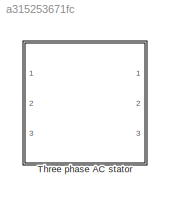
MODEL slx_a315253671fc
KIND model
CONFIG AbsTol = auto
CONFIG FixedStep = auto
CONFIG MaxStep = auto
CONFIG MinStep = auto
CONFIG RelTol = 1e-3
CONFIG SampleTimeConstraint = Unconstrained
CONFIG Solver = VariableStepAuto
CONFIG SolverMode = Auto
CONFIG SolverName = VariableStepAuto
CONFIG StartTime = 0.0
CONFIG StopTime = 10.0
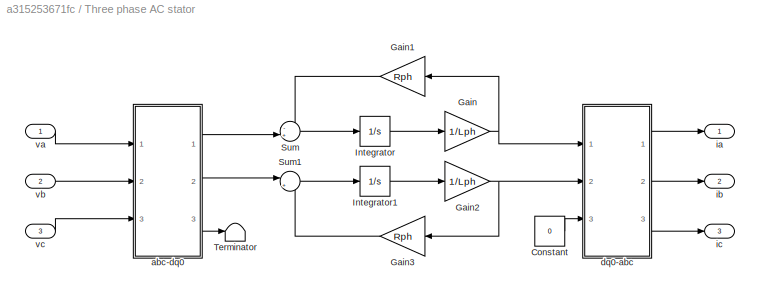
BLOCK [SubSystem] Three phase AC stator
  Ports = [3, 3]
  RequestExecContextInheritance = off
  Variant = off
BLOCK [Constant] Three phase AC stator/Constant
  Value = 0
BLOCK [Gain] Three phase AC stator/Gain
  Gain = 1/Lph
  OutDataTypeStr = Inherit: Inherit via internal rule
  ParamDataTypeStr = Inherit: Inherit via internal rule
  SaturateOnIntegerOverflow = off
BLOCK [Gain] Three phase AC stator/Gain1
  Gain = Rph
  OutDataTypeStr = Inherit: Inherit via internal rule
  ParamDataTypeStr = Inherit: Inherit via internal rule
  SaturateOnIntegerOverflow = off
BLOCK [Gain] Three phase AC stator/Gain2
  Gain = 1/Lph
  OutDataTypeStr = Inherit: Inherit via internal rule
  ParamDataTypeStr = Inherit: Inherit via internal rule
  SaturateOnIntegerOverflow = off
BLOCK [Gain] Three phase AC stator/Gain3
  Gain = Rph
  OutDataTypeStr = Inherit: Inherit via internal rule
  ParamDataTypeStr = Inherit: Inherit via internal rule
  SaturateOnIntegerOverflow = off
BLOCK [Integrator] Three phase AC stator/Integrator
  Ports = [1, 1]
BLOCK [Integrator] Three phase AC stator/Integrator1
  Ports = [1, 1]
BLOCK [Sum] Three phase AC stator/Sum
  IconShape = round
  InputSameDT = off
  Inputs = -+|
  OutDataTypeStr = Inherit: Inherit via internal rule
  Ports = [2, 1]
  SaturateOnIntegerOverflow = off
BLOCK [Sum] Three phase AC stator/Sum1
  IconShape = round
  InputSameDT = off
  Inputs = |+-
  OutDataTypeStr = Inherit: Inherit via internal rule
  Ports = [2, 1]
  SaturateOnIntegerOverflow = off
BLOCK [Terminator] Three phase AC stator/Terminator
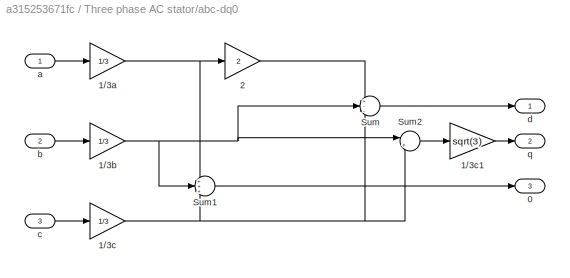
BLOCK [SubSystem] Three phase AC stator/abc-dq0
  Ports = [3, 3]
  RequestExecContextInheritance = off
  Variant = off
BLOCK [Outport] Three phase AC stator/abc-dq0/0
  IconDisplay = Port number
  Port = 3
BLOCK [Gain] Three phase AC stator/abc-dq0/1//3a
  Gain = 1/3
  OutDataTypeStr = Inherit: Inherit via internal rule
  ParamDataTypeStr = Inherit: Inherit via internal rule
  SaturateOnIntegerOverflow = off
BLOCK [Gain] Three phase AC stator/abc-dq0/1//3b
  Gain = 1/3
  OutDataTypeStr = Inherit: Inherit via internal rule
  ParamDataTypeStr = Inherit: Inherit via internal rule
  SaturateOnIntegerOverflow = off
BLOCK [Gain] Three phase AC stator/abc-dq0/1//3c
  Gain = 1/3
  OutDataTypeStr = Inherit: Inherit via internal rule
  ParamDataTypeStr = Inherit: Inherit via internal rule
  SaturateOnIntegerOverflow = off
BLOCK [Gain] Three phase AC stator/abc-dq0/1//3c1
  Gain = sqrt(3)
  OutDataTypeStr = Inherit: Inherit via internal rule
  ParamDataTypeStr = Inherit: Inherit via internal rule
  SaturateOnIntegerOverflow = off
BLOCK [Gain] Three phase AC stator/abc-dq0/2
  Gain = 2
  OutDataTypeStr = Inherit: Inherit via internal rule
  ParamDataTypeStr = Inherit: Inherit via internal rule
  SaturateOnIntegerOverflow = off
BLOCK [Sum] Three phase AC stator/abc-dq0/Sum
  IconShape = round
  InputSameDT = off
  Inputs = +--
  OutDataTypeStr = Inherit: Inherit via internal rule
  Ports = [3, 1]
  SaturateOnIntegerOverflow = off
BLOCK [Sum] Three phase AC stator/abc-dq0/Sum1
  IconShape = round
  InputSameDT = off
  Inputs = +++
  OutDataTypeStr = Inherit: Inherit via internal rule
  Ports = [3, 1]
  SaturateOnIntegerOverflow = off
BLOCK [Sum] Three phase AC stator/abc-dq0/Sum2
  IconShape = round
  InputSameDT = off
  Inputs = |+-
  OutDataTypeStr = Inherit: Inherit via internal rule
  Ports = [2, 1]
  SaturateOnIntegerOverflow = off
BLOCK [Inport] Three phase AC stator/abc-dq0/a
  IconDisplay = Port number
BLOCK [Inport] Three phase AC stator/abc-dq0/b
  IconDisplay = Port number
  Port = 2
BLOCK [Inport] Three phase AC stator/abc-dq0/c
  IconDisplay = Port number
  Port = 3
BLOCK [Outport] Three phase AC stator/abc-dq0/d
  IconDisplay = Port number
BLOCK [Outport] Three phase AC stator/abc-dq0/q
  IconDisplay = Port number
  Port = 2
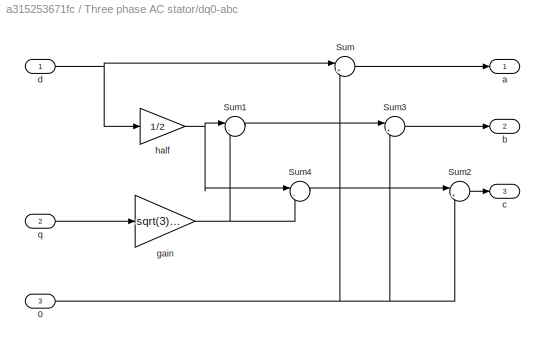
BLOCK [SubSystem] Three phase AC stator/dq0-abc
  Ports = [3, 3]
  RequestExecContextInheritance = off
  Variant = off
BLOCK [Inport] Three phase AC stator/dq0-abc/0
  IconDisplay = Port number
  Port = 3
BLOCK [Sum] Three phase AC stator/dq0-abc/Sum
  IconShape = round
  InputSameDT = off
  Inputs = |++
  OutDataTypeStr = Inherit: Inherit via internal rule
  Ports = [2, 1]
  SaturateOnIntegerOverflow = off
BLOCK [Sum] Three phase AC stator/dq0-abc/Sum1
  IconShape = round
  InputSameDT = off
  Inputs = |-+
  OutDataTypeStr = Inherit: Inherit via internal rule
  Ports = [2, 1]
  SaturateOnIntegerOverflow = off
BLOCK [Sum] Three phase AC stator/dq0-abc/Sum2
  IconShape = round
  InputSameDT = off
  Inputs = |++
  OutDataTypeStr = Inherit: Inherit via internal rule
  Ports = [2, 1]
  SaturateOnIntegerOverflow = off
BLOCK [Sum] Three phase AC stator/dq0-abc/Sum3
  IconShape = round
  InputSameDT = off
  Inputs = |++
  OutDataTypeStr = Inherit: Inherit via internal rule
  Ports = [2, 1]
  SaturateOnIntegerOverflow = off
BLOCK [Sum] Three phase AC stator/dq0-abc/Sum4
  IconShape = round
  InputSameDT = off
  Inputs = |--
  OutDataTypeStr = Inherit: Inherit via internal rule
  Ports = [2, 1]
  SaturateOnIntegerOverflow = off
BLOCK [Outport] Three phase AC stator/dq0-abc/a
  IconDisplay = Port number
BLOCK [Outport] Three phase AC stator/dq0-abc/b
  IconDisplay = Port number
  Port = 2
BLOCK [Outport] Three phase AC stator/dq0-abc/c
  IconDisplay = Port number
  Port = 3
BLOCK [Inport] Three phase AC stator/dq0-abc/d
  IconDisplay = Port number
BLOCK [Gain] Three phase AC stator/dq0-abc/gain
  Gain = sqrt(3)/2
  OutDataTypeStr = Inherit: Inherit via internal rule
  ParamDataTypeStr = Inherit: Inherit via internal rule
  SaturateOnIntegerOverflow = off
BLOCK [Gain] Three phase AC stator/dq0-abc/half
  Gain = 1/2
  OutDataTypeStr = Inherit: Inherit via internal rule
  ParamDataTypeStr = Inherit: Inherit via internal rule
  SaturateOnIntegerOverflow = off
BLOCK [Inport] Three phase AC stator/dq0-abc/q
  IconDisplay = Port number
  Port = 2
BLOCK [Outport] Three phase AC stator/ia
  IconDisplay = Port number
BLOCK [Outport] Three phase AC stator/ib
  IconDisplay = Port number
  Port = 2
BLOCK [Outport] Three phase AC stator/ic
  IconDisplay = Port number
  Port = 3
BLOCK [Inport] Three phase AC stator/va
  IconDisplay = Port number
BLOCK [Inport] Three phase AC stator/vb
  IconDisplay = Port number
  Port = 2
BLOCK [Inport] Three phase AC stator/vc
  IconDisplay = Port number
  Port = 3
LINE Three phase AC stator/Constant:1 -> Three phase AC stator/dq0-abc:3
LINE Three phase AC stator/Gain1:1 -> Three phase AC stator/Sum:1
NET Three phase AC stator/Gain2:1 -> Three phase AC stator/Gain3:1, Three phase AC stator/dq0-abc:2
LINE Three phase AC stator/Gain3:1 -> Three phase AC stator/Sum1:2
NET Three phase AC stator/Gain:1 -> Three phase AC stator/Gain1:1, Three phase AC stator/dq0-abc:1
LINE Three phase AC stator/Integrator1:1 -> Three phase AC stator/Gain2:1
LINE Three phase AC stator/Integrator:1 -> Three phase AC stator/Gain:1
LINE Three phase AC stator/Sum1:1 -> Three phase AC stator/Integrator1:1
LINE Three phase AC stator/Sum:1 -> Three phase AC stator/Integrator:1
NET Three phase AC stator/abc-dq0/1//3a:1 -> Three phase AC stator/abc-dq0/2:1, Three phase AC stator/abc-dq0/Sum1:1
NET Three phase AC stator/abc-dq0/1//3b:1 -> Three phase AC stator/abc-dq0/Sum1:2, Three phase AC stator/abc-dq0/Sum2:1, Three phase AC stator/abc-dq0/Sum:2
LINE Three phase AC stator/abc-dq0/1//3c1:1 -> Three phase AC stator/abc-dq0/q:1
NET Three phase AC stator/abc-dq0/1//3c:1 -> Three phase AC stator/abc-dq0/Sum1:3, Three phase AC stator/abc-dq0/Sum2:2, Three phase AC stator/abc-dq0/Sum:3
LINE Three phase AC stator/abc-dq0/2:1 -> Three phase AC stator/abc-dq0/Sum:1
LINE Three phase AC stator/abc-dq0/Sum1:1 -> Three phase AC stator/abc-dq0/0:1
LINE Three phase AC stator/abc-dq0/Sum2:1 -> Three phase AC stator/abc-dq0/1//3c1:1
LINE Three phase AC stator/abc-dq0/Sum:1 -> Three phase AC stator/abc-dq0/d:1
LINE Three phase AC stator/abc-dq0/a:1 -> Three phase AC stator/abc-dq0/1//3a:1
LINE Three phase AC stator/abc-dq0/b:1 -> Three phase AC stator/abc-dq0/1//3b:1
LINE Three phase AC stator/abc-dq0/c:1 -> Three phase AC stator/abc-dq0/1//3c:1
LINE Three phase AC stator/abc-dq0:1 -> Three phase AC stator/Sum:2
LINE Three phase AC stator/abc-dq0:2 -> Three phase AC stator/Sum1:1
LINE Three phase AC stator/abc-dq0:3 -> Three phase AC stator/Terminator:1
NET Three phase AC stator/dq0-abc/0:1 -> Three phase AC stator/dq0-abc/Sum2:2, Three phase AC stator/dq0-abc/Sum3:2, Three phase AC stator/dq0-abc/Sum:2
LINE Three phase AC stator/dq0-abc/Sum1:1 -> Three phase AC stator/dq0-abc/Sum3:1
LINE Three phase AC stator/dq0-abc/Sum2:1 -> Three phase AC stator/dq0-abc/c:1
LINE Three phase AC stator/dq0-abc/Sum3:1 -> Three phase AC stator/dq0-abc/b:1
LINE Three phase AC stator/dq0-abc/Sum4:1 -> Three phase AC stator/dq0-abc/Sum2:1
LINE Three phase AC stator/dq0-abc/Sum:1 -> Three phase AC stator/dq0-abc/a:1
NET Three phase AC stator/dq0-abc/d:1 -> Three phase AC stator/dq0-abc/Sum:1, Three phase AC stator/dq0-abc/half:1
NET Three phase AC stator/dq0-abc/gain:1 -> Three phase AC stator/dq0-abc/Sum1:2, Three phase AC stator/dq0-abc/Sum4:2
NET Three phase AC stator/dq0-abc/half:1 -> Three phase AC stator/dq0-abc/Sum1:1, Three phase AC stator/dq0-abc/Sum4:1
LINE Three phase AC stator/dq0-abc/q:1 -> Three phase AC stator/dq0-abc/gain:1
LINE Three phase AC stator/dq0-abc:1 -> Three phase AC stator/ia:1
LINE Three phase AC stator/dq0-abc:2 -> Three phase AC stator/ib:1
LINE Three phase AC stator/dq0-abc:3 -> Three phase AC stator/ic:1
LINE Three phase AC stator/va:1 -> Three phase AC stator/abc-dq0:1
LINE Three phase AC stator/vb:1 -> Three phase AC stator/abc-dq0:2
LINE Three phase AC stator/vc:1 -> Three phase AC stator/abc-dq0:3
note: NET lines group one-source signal fan-out (src -> all destinations, sorted); 1:1 wires keep LINE
